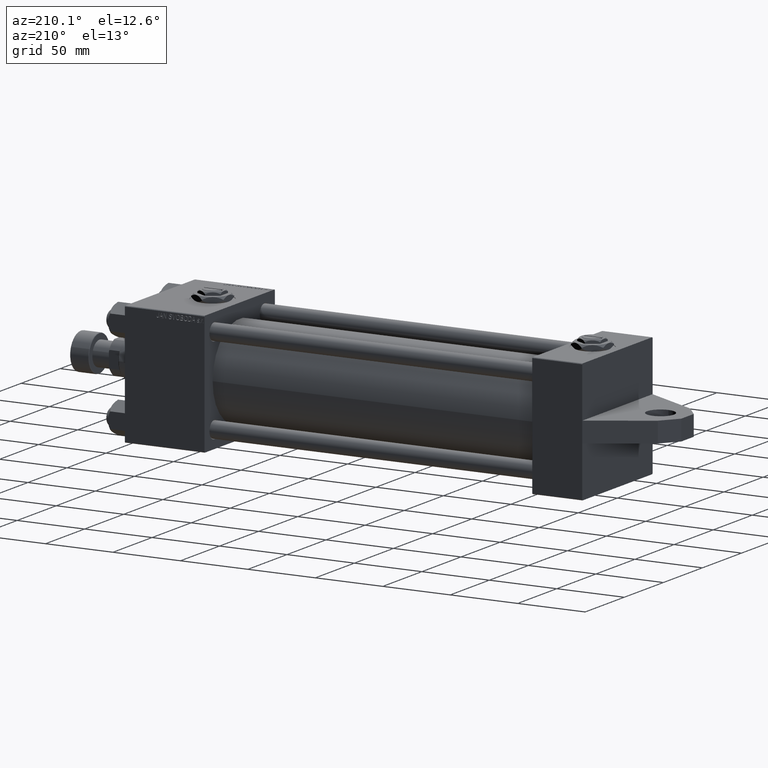
[diagram: clean part render]
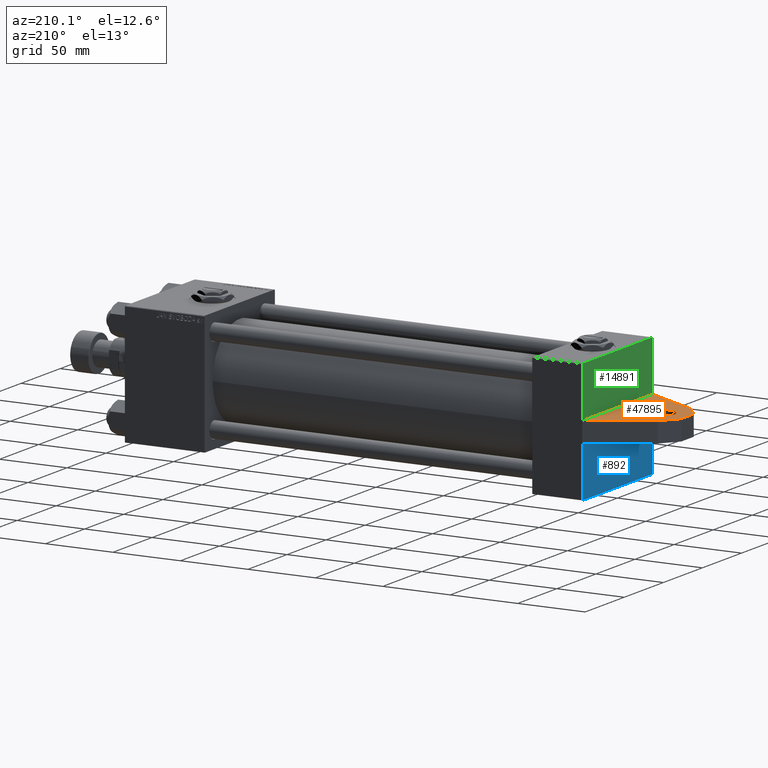
[diagram: same view with three faces highlighted in distinct colors, each labeled with its STEP entity id]
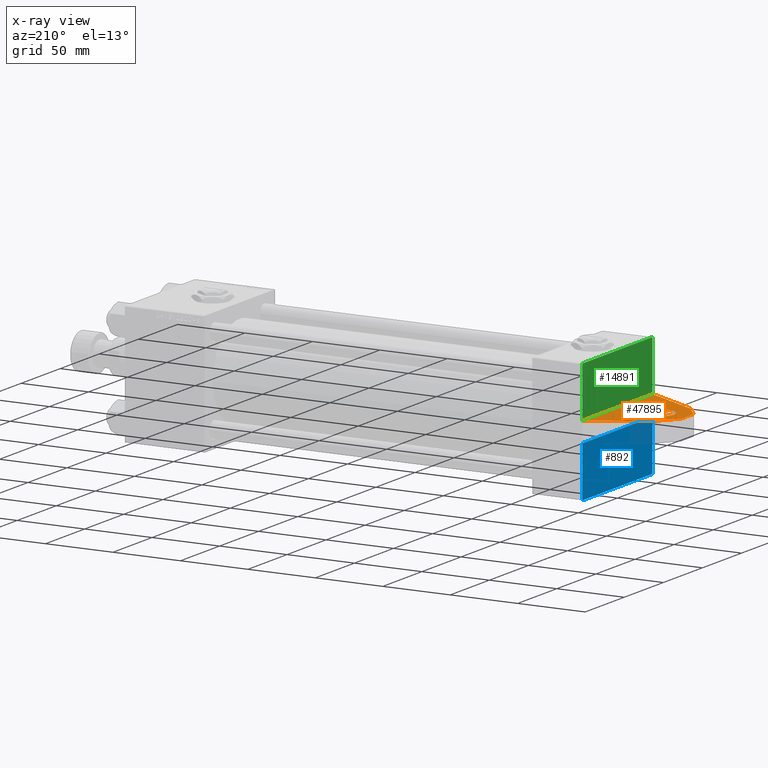
[diagram: x-ray of the same camera — body ghosted, the three highlighted faces saturated]
A machine part, auxiliary view with three faces highlighted in distinct colors.
The next image is the same camera in x-ray (body ghosted, the three faces saturated) — at least one of them is partly hidden behind the body in this view.
Their STEP definitions:

[orange] entity #47895 — the highlighted planar face has unit normal (-0, 0, 1).
#59 = ORIENTED_EDGE ( 'NONE', *, *, #28826, .T. ) ;
#71 = VERTEX_POINT ( 'NONE', #35735 ) ;
#725 = DIRECTION ( 'NONE',  ( 0.000000000000000000, 0.000000000000000000, -1.000000000000000000 ) ) ;
#823 = DIRECTION ( 'NONE',  ( 0.000000000000000000, 0.000000000000000000, 1.000000000000000000 ) ) ;
#999 = EDGE_CURVE ( 'NONE', #7065, #11054, #28704, .T. ) ;
#1795 = CARTESIAN_POINT ( 'NONE',  ( -42.00000000000000000, 7.500000000000000000, -20.75128869403545551 ) ) ;
#2169 = CARTESIAN_POINT ( 'NONE',  ( -52.00000000000000711, 7.500000000000000000, -8.000000000000000000 ) ) ;
#2814 = EDGE_LOOP ( 'NONE', ( #19998, #39618, #59, #33008, #37228, #11429 ) ) ;
#5333 = ORIENTED_EDGE ( 'NONE', *, *, #999, .F. ) ;
#6432 = CIRCLE ( 'NONE', #37814, 10.00000000000000000 ) ;
#6778 = CARTESIAN_POINT ( 'NONE',  ( -42.00000000000000000, 7.500000000000000000, -20.75128869403545551 ) ) ;
#7065 = VERTEX_POINT ( 'NONE', #31303 ) ;
#7123 = VECTOR ( 'NONE', #32605, 1000.000000000000227 ) ;
#7804 = CARTESIAN_POINT ( 'NONE',  ( -52.00000000000000711, 7.500000000000000000, -8.000000000000000000 ) ) ;
#7883 = VECTOR ( 'NONE', #32169, 1000.000000000000000 ) ;
#8820 = VECTOR ( 'NONE', #21905, 1000.000000000000227 ) ;
#9158 = DIRECTION ( 'NONE',  ( -0.8660254037844363761, -0.000000000000000000, 0.5000000000000041078 ) ) ;
#9786 = CARTESIAN_POINT ( 'NONE',  ( -42.00000000000000000, 7.500000000000000000, 20.75128869403545551 ) ) ;
#10230 = CARTESIAN_POINT ( 'NONE',  ( -52.00000000000000711, 7.500000000000000000, 8.000000000000000000 ) ) ;
#11054 = VERTEX_POINT ( 'NONE', #33093 ) ;
#11429 = ORIENTED_EDGE ( 'NONE', *, *, #12615, .T. ) ;
#12026 = LINE ( 'NONE', #19389, #18287 ) ;
#12318 = VECTOR ( 'NONE', #9158, 1000.000000000000000 ) ;
#12615 = EDGE_CURVE ( 'NONE', #18861, #71, #43943, .T. ) ;
#12911 = FACE_BOUND ( 'NONE', #23377, .T. ) ;
#13123 = CARTESIAN_POINT ( 'NONE',  ( -32.00000000000000000, 7.500000000000000000, 0.000000000000000000 ) ) ;
#15102 = EDGE_CURVE ( 'NONE', #43251, #31244, #28485, .T. ) ;
#15625 = DIRECTION ( 'NONE',  ( -0.000000000000000000, 1.000000000000000000, 0.000000000000000000 ) ) ;
#15650 = AXIS2_PLACEMENT_3D ( 'NONE', #16356, #15625, #30622 ) ;
#16232 = CARTESIAN_POINT ( 'NONE',  ( -32.00000000000000000, 7.500000000000000000, 0.000000000000000000 ) ) ;
#16295 = LINE ( 'NONE', #1795, #12318 ) ;
#16356 = CARTESIAN_POINT ( 'NONE',  ( 0.000000000000000000, 7.500000000000000000, 0.000000000000000000 ) ) ;
#16437 = CARTESIAN_POINT ( 'NONE',  ( -42.00000000000000000, 7.500000000000000000, 20.75128869403545551 ) ) ;
#16487 = DIRECTION ( 'NONE',  ( 0.000000000000000000, 0.000000000000000000, 1.000000000000000000 ) ) ;
#16558 = ORIENTED_EDGE ( 'NONE', *, *, #21381, .F. ) ;
#17069 = EDGE_CURVE ( 'NONE', #71, #43251, #25459, .T. ) ;
#18287 = VECTOR ( 'NONE', #725, 1000.000000000000000 ) ;
#18861 = VERTEX_POINT ( 'NONE', #7804 ) ;
#19389 = CARTESIAN_POINT ( 'NONE',  ( 0.000000000000000000, 7.500000000000000000, 45.00000000000000000 ) ) ;
#19998 = ORIENTED_EDGE ( 'NONE', *, *, #17069, .T. ) ;
#20428 = VERTEX_POINT ( 'NONE', #6778 ) ;
#21381 = EDGE_CURVE ( 'NONE', #11054, #7065, #6432, .T. ) ;
#21905 = DIRECTION ( 'NONE',  ( -0.6171013169714327784, -0.000000000000000000, 0.7868837046172219019 ) ) ;
#23377 = EDGE_LOOP ( 'NONE', ( #5333, #16558 ) ) ;
#23597 = DIRECTION ( 'NONE',  ( 0.000000000000000000, 1.000000000000000000, 0.000000000000000000 ) ) ;
#24227 = EDGE_CURVE ( 'NONE', #20428, #18861, #25364, .T. ) ;
#25364 = LINE ( 'NONE', #44281, #8820 ) ;
#25459 = LINE ( 'NONE', #10230, #7123 ) ;
#26916 = PLANE ( 'NONE',  #15650 ) ;
#28485 = LINE ( 'NONE', #9786, #7883 ) ;
#28704 = CIRCLE ( 'NONE', #33426, 10.00000000000000000 ) ;
#28826 = EDGE_CURVE ( 'NONE', #31244, #34770, #12026, .T. ) ;
#30622 = DIRECTION ( 'NONE',  ( 0.000000000000000000, -0.000000000000000000, 1.000000000000000000 ) ) ;
#31244 = VERTEX_POINT ( 'NONE', #39466 ) ;
#31303 = CARTESIAN_POINT ( 'NONE',  ( -32.00000000000000000, 7.500000000000000000, 10.00000000000000000 ) ) ;
#31876 = CARTESIAN_POINT ( 'NONE',  ( 0.000000000000000000, 7.500000000000000000, -45.00000000000000000 ) ) ;
#32169 = DIRECTION ( 'NONE',  ( 0.8660254037844363761, 0.000000000000000000, 0.5000000000000041078 ) ) ;
#32605 = DIRECTION ( 'NONE',  ( 0.6171013169714327784, 0.000000000000000000, 0.7868837046172219019 ) ) ;
#33008 = ORIENTED_EDGE ( 'NONE', *, *, #37766, .T. ) ;
#33093 = CARTESIAN_POINT ( 'NONE',  ( -32.00000000000000000, 7.500000000000000000, -10.00000000000000000 ) ) ;
#33426 = AXIS2_PLACEMENT_3D ( 'NONE', #13123, #38683, #823 ) ;
#34770 = VERTEX_POINT ( 'NONE', #31876 ) ;
#35735 = CARTESIAN_POINT ( 'NONE',  ( -52.00000000000000711, 7.500000000000000000, 8.000000000000000000 ) ) ;
#36080 = VECTOR ( 'NONE', #43468, 1000.000000000000000 ) ;
#37228 = ORIENTED_EDGE ( 'NONE', *, *, #24227, .T. ) ;
#37766 = EDGE_CURVE ( 'NONE', #34770, #20428, #16295, .T. ) ;
#37814 = AXIS2_PLACEMENT_3D ( 'NONE', #16232, #23597, #16487 ) ;
#38683 = DIRECTION ( 'NONE',  ( 0.000000000000000000, 1.000000000000000000, 0.000000000000000000 ) ) ;
#39466 = CARTESIAN_POINT ( 'NONE',  ( 0.000000000000000000, 7.500000000000000000, 45.00000000000000000 ) ) ;
#39618 = ORIENTED_EDGE ( 'NONE', *, *, #15102, .T. ) ;
#43251 = VERTEX_POINT ( 'NONE', #16437 ) ;
#43468 = DIRECTION ( 'NONE',  ( 0.000000000000000000, 0.000000000000000000, 1.000000000000000000 ) ) ;
#43943 = LINE ( 'NONE', #2169, #36080 ) ;
#44281 = CARTESIAN_POINT ( 'NONE',  ( -52.00000000000000711, 7.500000000000000000, -8.000000000000000000 ) ) ;
#46336 = FACE_OUTER_BOUND ( 'NONE', #2814, .T. ) ;
#47895 = ADVANCED_FACE ( 'NONE', ( #12911, #46336 ), #26916, .T. ) ;

[blue] entity #892 — the highlighted planar face has unit normal (-1, -0, 0).
#103 = ORIENTED_EDGE ( 'NONE', *, *, #46967, .F. ) ;
#342 = DIRECTION ( 'NONE',  ( -0.000000000000000000, 0.000000000000000000, 1.000000000000000000 ) ) ;
#380 = LINE ( 'NONE', #18335, #14883 ) ;
#571 = ORIENTED_EDGE ( 'NONE', *, *, #27579, .F. ) ;
#668 = VERTEX_POINT ( 'NONE', #1436 ) ;
#695 = VECTOR ( 'NONE', #29165, 1000.000000000000000 ) ;
#892 = ADVANCED_FACE ( 'NONE', ( #29844 ), #22936, .T. ) ;
#1436 = CARTESIAN_POINT ( 'NONE',  ( 0.000000000000000000, -44.49999999999995737, 45.00000000000000000 ) ) ;
#2457 = CARTESIAN_POINT ( 'NONE',  ( 0.000000000000000000, -44.74999999999998579, -44.74999999999998579 ) ) ;
#3336 = CARTESIAN_POINT ( 'NONE',  ( 0.000000000000000000, -45.00000000000000711, 45.00000000000000000 ) ) ;
#3819 = LINE ( 'NONE', #3336, #695 ) ;
#3996 = EDGE_CURVE ( 'NONE', #48004, #30044, #28535, .T. ) ;
#5822 = CARTESIAN_POINT ( 'NONE',  ( 0.000000000000000000, -45.00000000000000000, -44.49999999999995737 ) ) ;
#6230 = VERTEX_POINT ( 'NONE', #17047 ) ;
#7394 = VECTOR ( 'NONE', #34914, 1000.000000000000000 ) ;
#14883 = VECTOR ( 'NONE', #33337, 1000.000000000000000 ) ;
#17047 = CARTESIAN_POINT ( 'NONE',  ( 0.000000000000000000, -45.00000000000000711, 44.49999999999997158 ) ) ;
#18036 = EDGE_CURVE ( 'NONE', #6230, #668, #30243, .T. ) ;
#18049 = ORIENTED_EDGE ( 'NONE', *, *, #18036, .T. ) ;
#18072 = LINE ( 'NONE', #48059, #29357 ) ;
#18212 = CARTESIAN_POINT ( 'NONE',  ( -0.000000000000000000, -44.75000000000029843, 44.74999999999967315 ) ) ;
#18299 = ORIENTED_EDGE ( 'NONE', *, *, #3996, .T. ) ;
#18335 = CARTESIAN_POINT ( 'NONE',  ( 0.000000000000000000, -7.500000000000000000, 45.00000000000000000 ) ) ;
#21266 = VERTEX_POINT ( 'NONE', #32214 ) ;
#22936 = PLANE ( 'NONE',  #23990 ) ;
#23783 = EDGE_LOOP ( 'NONE', ( #571, #36476, #31793, #18299, #103, #18049 ) ) ;
#23990 = AXIS2_PLACEMENT_3D ( 'NONE', #41877, #40905, #342 ) ;
#27523 = CARTESIAN_POINT ( 'NONE',  ( 0.000000000000000000, 44.99999999999998579, -44.99999999999998579 ) ) ;
#27579 = EDGE_CURVE ( 'NONE', #21266, #668, #18072, .T. ) ;
#27776 = LINE ( 'NONE', #27523, #7394 ) ;
#28535 = LINE ( 'NONE', #2457, #40595 ) ;
#29010 = DIRECTION ( 'NONE',  ( 0.000000000000000000, -0.7071067811865474617, 0.7071067811865474617 ) ) ;
#29165 = DIRECTION ( 'NONE',  ( 0.000000000000000000, 7.709882115452476934E-17, -1.000000000000000000 ) ) ;
#29357 = VECTOR ( 'NONE', #30346, 1000.000000000000000 ) ;
#29844 = FACE_OUTER_BOUND ( 'NONE', #23783, .T. ) ;
#30044 = VERTEX_POINT ( 'NONE', #5822 ) ;
#30243 = LINE ( 'NONE', #18212, #35480 ) ;
#30346 = DIRECTION ( 'NONE',  ( 0.000000000000000000, -1.000000000000000000, -1.541976423090495387E-16 ) ) ;
#31793 = ORIENTED_EDGE ( 'NONE', *, *, #31831, .T. ) ;
#31831 = EDGE_CURVE ( 'NONE', #35514, #48004, #27776, .T. ) ;
#32214 = CARTESIAN_POINT ( 'NONE',  ( 0.000000000000000000, -7.500000000000000000, 45.00000000000000000 ) ) ;
#33337 = DIRECTION ( 'NONE',  ( 0.000000000000000000, 0.000000000000000000, -1.000000000000000000 ) ) ;
#34914 = DIRECTION ( 'NONE',  ( 0.000000000000000000, -1.000000000000000000, -1.541976423090495633E-16 ) ) ;
#35480 = VECTOR ( 'NONE', #37634, 1000.000000000000114 ) ;
#35514 = VERTEX_POINT ( 'NONE', #41720 ) ;
#36476 = ORIENTED_EDGE ( 'NONE', *, *, #47851, .T. ) ;
#37634 = DIRECTION ( 'NONE',  ( -0.000000000000000000, 0.7071067811865425767, 0.7071067811865524577 ) ) ;
#39791 = CARTESIAN_POINT ( 'NONE',  ( 0.000000000000000000, -44.49999999999995737, -45.00000000000000000 ) ) ;
#40595 = VECTOR ( 'NONE', #29010, 1000.000000000000114 ) ;
#40905 = DIRECTION ( 'NONE',  ( -1.000000000000000000, 0.000000000000000000, -0.000000000000000000 ) ) ;
#41720 = CARTESIAN_POINT ( 'NONE',  ( 0.000000000000000000, -7.499999999999985789, -44.99999999999999289 ) ) ;
#41877 = CARTESIAN_POINT ( 'NONE',  ( 0.000000000000000000, 0.000000000000000000, 0.000000000000000000 ) ) ;
#46967 = EDGE_CURVE ( 'NONE', #6230, #30044, #3819, .T. ) ;
#47851 = EDGE_CURVE ( 'NONE', #21266, #35514, #380, .T. ) ;
#48004 = VERTEX_POINT ( 'NONE', #39791 ) ;
#48059 = CARTESIAN_POINT ( 'NONE',  ( 0.000000000000000000, 44.99999999999998579, 45.00000000000001421 ) ) ;

[green] entity #14891 — the highlighted planar face has unit normal (-1, -0, 0).
#725 = DIRECTION ( 'NONE',  ( 0.000000000000000000, 0.000000000000000000, -1.000000000000000000 ) ) ;
#1236 = CARTESIAN_POINT ( 'NONE',  ( 0.000000000000000000, 44.99999999999998579, 45.00000000000001421 ) ) ;
#2886 = EDGE_CURVE ( 'NONE', #7466, #16193, #16892, .T. ) ;
#3320 = CARTESIAN_POINT ( 'NONE',  ( 0.000000000000000000, 44.99999999999998579, 44.50000000000001421 ) ) ;
#3656 = VECTOR ( 'NONE', #6047, 1000.000000000000114 ) ;
#4150 = LINE ( 'NONE', #18421, #18634 ) ;
#6047 = DIRECTION ( 'NONE',  ( 0.000000000000000000, 0.7071067811865474617, -0.7071067811865474617 ) ) ;
#7466 = VERTEX_POINT ( 'NONE', #27559 ) ;
#7578 = CARTESIAN_POINT ( 'NONE',  ( 0.000000000000000000, 0.000000000000000000, 0.000000000000000000 ) ) ;
#7687 = EDGE_CURVE ( 'NONE', #18708, #34770, #4150, .T. ) ;
#8588 = LINE ( 'NONE', #23330, #43054 ) ;
#9206 = VECTOR ( 'NONE', #37343, 1000.000000000000114 ) ;
#9827 = CARTESIAN_POINT ( 'NONE',  ( 0.000000000000000000, 44.49999999999998579, -44.99999999999998579 ) ) ;
#9982 = CARTESIAN_POINT ( 'NONE',  ( 0.000000000000000000, 44.74999999999999289, 44.74999999999999289 ) ) ;
#10393 = EDGE_CURVE ( 'NONE', #7466, #31244, #8588, .T. ) ;
#10983 = AXIS2_PLACEMENT_3D ( 'NONE', #7578, #29732, #45443 ) ;
#11288 = DIRECTION ( 'NONE',  ( 0.000000000000000000, -1.000000000000000000, -1.541976423090495633E-16 ) ) ;
#12026 = LINE ( 'NONE', #19389, #18287 ) ;
#14741 = PLANE ( 'NONE',  #10983 ) ;
#14891 = ADVANCED_FACE ( 'NONE', ( #34387 ), #14741, .T. ) ;
#15098 = ORIENTED_EDGE ( 'NONE', *, *, #38239, .T. ) ;
#16193 = VERTEX_POINT ( 'NONE', #3320 ) ;
#16738 = LINE ( 'NONE', #1236, #41196 ) ;
#16892 = LINE ( 'NONE', #9982, #3656 ) ;
#18287 = VECTOR ( 'NONE', #725, 1000.000000000000000 ) ;
#18421 = CARTESIAN_POINT ( 'NONE',  ( 0.000000000000000000, 44.99999999999998579, -44.99999999999998579 ) ) ;
#18634 = VECTOR ( 'NONE', #11288, 1000.000000000000000 ) ;
#18708 = VERTEX_POINT ( 'NONE', #9827 ) ;
#19389 = CARTESIAN_POINT ( 'NONE',  ( 0.000000000000000000, 7.500000000000000000, 45.00000000000000000 ) ) ;
#19648 = DIRECTION ( 'NONE',  ( 0.000000000000000000, -1.000000000000000000, -1.541976423090495387E-16 ) ) ;
#23330 = CARTESIAN_POINT ( 'NONE',  ( 0.000000000000000000, 44.99999999999998579, 45.00000000000001421 ) ) ;
#23980 = ORIENTED_EDGE ( 'NONE', *, *, #33584, .T. ) ;
#25143 = EDGE_LOOP ( 'NONE', ( #28904, #39971, #32391, #23980, #15098, #32167 ) ) ;
#27127 = VERTEX_POINT ( 'NONE', #46188 ) ;
#27559 = CARTESIAN_POINT ( 'NONE',  ( 0.000000000000000000, 44.49999999999998579, 45.00000000000001421 ) ) ;
#28826 = EDGE_CURVE ( 'NONE', #31244, #34770, #12026, .T. ) ;
#28904 = ORIENTED_EDGE ( 'NONE', *, *, #28826, .F. ) ;
#29732 = DIRECTION ( 'NONE',  ( -1.000000000000000000, 0.000000000000000000, -0.000000000000000000 ) ) ;
#31244 = VERTEX_POINT ( 'NONE', #39466 ) ;
#31876 = CARTESIAN_POINT ( 'NONE',  ( 0.000000000000000000, 7.500000000000000000, -45.00000000000000000 ) ) ;
#32167 = ORIENTED_EDGE ( 'NONE', *, *, #7687, .T. ) ;
#32391 = ORIENTED_EDGE ( 'NONE', *, *, #2886, .T. ) ;
#33584 = EDGE_CURVE ( 'NONE', #16193, #27127, #16738, .T. ) ;
#34387 = FACE_OUTER_BOUND ( 'NONE', #25143, .T. ) ;
#34770 = VERTEX_POINT ( 'NONE', #31876 ) ;
#37110 = LINE ( 'NONE', #40782, #9206 ) ;
#37343 = DIRECTION ( 'NONE',  ( -0.000000000000000000, -0.7071067811865474617, -0.7071067811865474617 ) ) ;
#38239 = EDGE_CURVE ( 'NONE', #27127, #18708, #37110, .T. ) ;
#39102 = DIRECTION ( 'NONE',  ( 0.000000000000000000, 0.000000000000000000, -1.000000000000000000 ) ) ;
#39466 = CARTESIAN_POINT ( 'NONE',  ( 0.000000000000000000, 7.500000000000000000, 45.00000000000000000 ) ) ;
#39971 = ORIENTED_EDGE ( 'NONE', *, *, #10393, .F. ) ;
#40782 = CARTESIAN_POINT ( 'NONE',  ( 0.000000000000000000, 44.74999999999998579, -44.74999999999998579 ) ) ;
#41196 = VECTOR ( 'NONE', #39102, 1000.000000000000000 ) ;
#43054 = VECTOR ( 'NONE', #19648, 1000.000000000000000 ) ;
#45443 = DIRECTION ( 'NONE',  ( -0.000000000000000000, 0.000000000000000000, 1.000000000000000000 ) ) ;
#46188 = CARTESIAN_POINT ( 'NONE',  ( 0.000000000000000000, 44.99999999999998579, -44.49999999999995737 ) ) ;